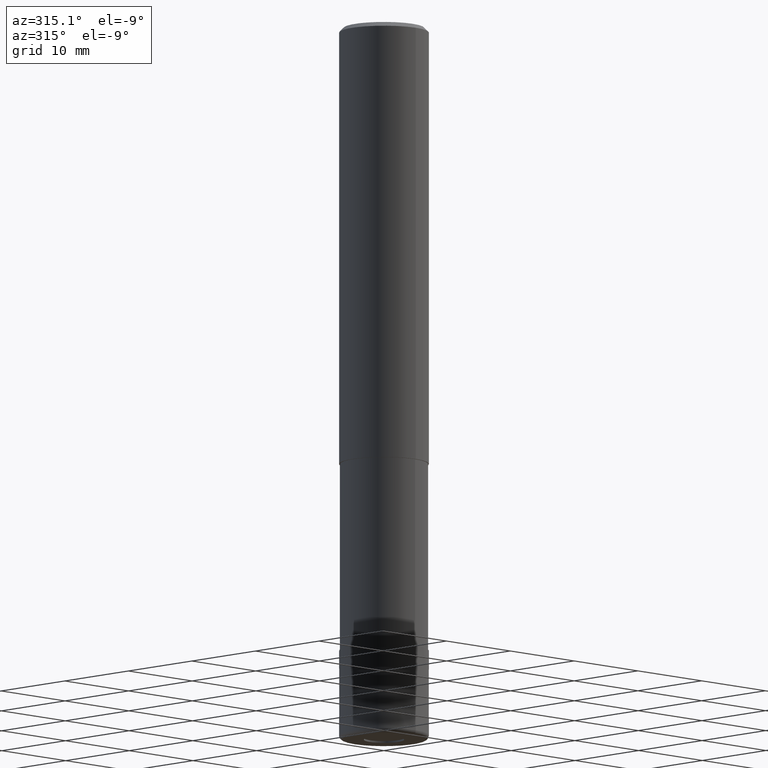
[diagram: clean part render]
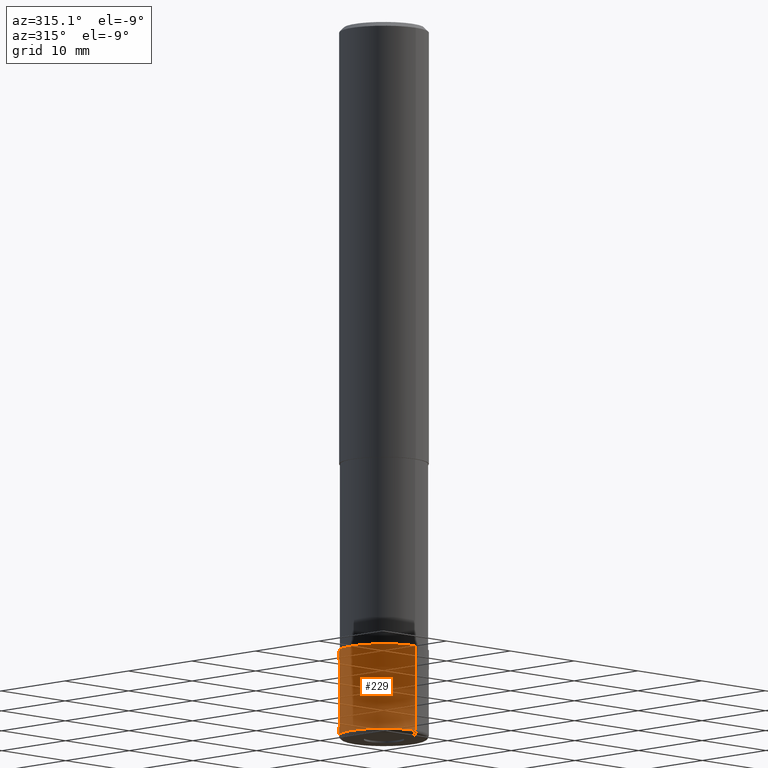
[diagram: same view with one face highlighted and labeled with its STEP entity id]
A machine part, auxiliary view. The second image highlights one B-rep face of the part: STEP entity #229.
In plain terms, the highlighted conical surface has half-angle 0.001 deg.
Its self-contained STEP definition (entity closure, byte-faithful):
#139=VERTEX_POINT('',#329);
#149=EDGE_CURVE('',#139,#205,#339,.T.);
#187=VERTEX_POINT('',#381);
#197=EDGE_CURVE('',#283,#139,#392,.T.);
#205=VERTEX_POINT('',#400);
#207=EDGE_CURVE('',#283,#187,#402,.T.);
#229=ADVANCED_FACE('',(#428),#429,.T.);
#243=EDGE_CURVE('',#205,#187,#445,.T.);
#283=VERTEX_POINT('',#494);
#329=CARTESIAN_POINT('',(6.1229093084765E-016,-4.9999,-70.0));
#339=CIRCLE('',#553,4.9999);
#381=CARTESIAN_POINT('',(0.0,5.0,-79.5));
#392=LINE('',#622,#623);
#400=CARTESIAN_POINT('',(0.0,4.9999,-70.0));
#402=CIRCLE('',#637,5.0);
#428=FACE_OUTER_BOUND('',#668,.T.);
#429=CONICAL_SURFACE('',#669,4.99995,1.05263157890604E-005);
#445=LINE('',#690,#691);
#494=CARTESIAN_POINT('',(6.12303176911189E-016,-5.0,-79.5));
#553=AXIS2_PLACEMENT_3D('',#793,#794,#795);
#622=CARTESIAN_POINT('',(6.1229705387942E-016,-4.99995,-74.75));
#623=VECTOR('',#859,1.0);
#637=AXIS2_PLACEMENT_3D('',#864,#865,#866);
#668=EDGE_LOOP('',(#906,#907,#908,#909));
#669=AXIS2_PLACEMENT_3D('',#910,#911,#912);
#690=CARTESIAN_POINT('',(-6.1229705387942E-016,4.99995,-74.75));
#691=VECTOR('',#928,1.0);
#793=CARTESIAN_POINT('',(0.0,0.0,-70.0));
#794=DIRECTION('',(0.0,0.0,-1.0));
#795=DIRECTION('',(0.0,1.0,0.0));
#859=DIRECTION('',(-1.28905931973861E-021,1.0526315788866E-005,0.999999999944598));
#864=CARTESIAN_POINT('',(0.0,0.0,-79.5));
#865=DIRECTION('',(0.0,0.0,-1.0));
#866=DIRECTION('',(0.0,1.0,0.0));
#906=ORIENTED_EDGE('',*,*,#243,.T.);
#907=ORIENTED_EDGE('',*,*,#207,.F.);
#908=ORIENTED_EDGE('',*,*,#197,.T.);
#909=ORIENTED_EDGE('',*,*,#149,.T.);
#910=CARTESIAN_POINT('',(0.0,0.0,-74.75));
#911=DIRECTION('',(0.0,-0.0,-1.0));
#912=DIRECTION('',(0.0,1.0,0.0));
#928=DIRECTION('',(-1.28905931973861E-021,1.0526315788866E-005,-0.999999999944598));